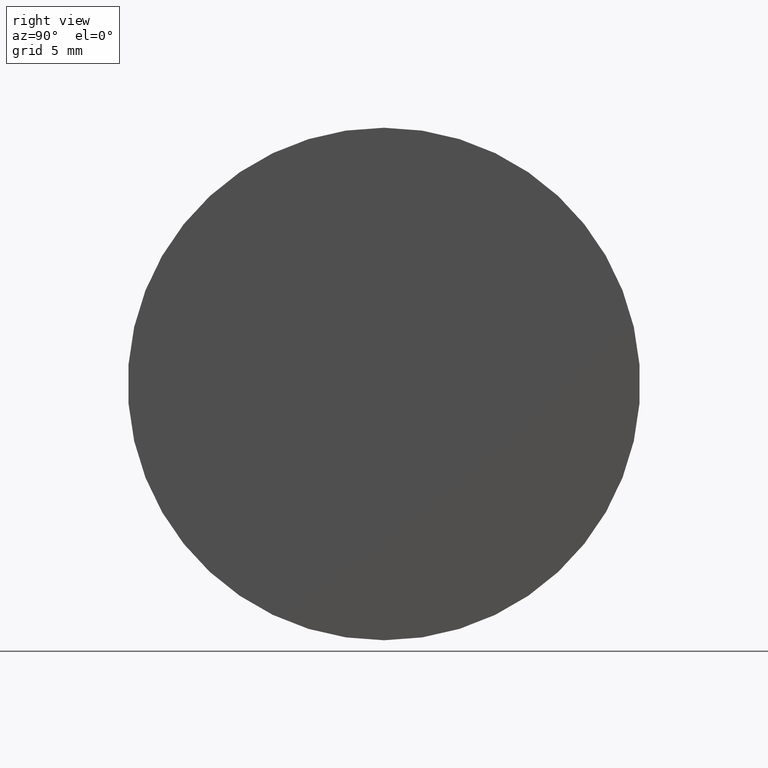
[diagram: clean part render]
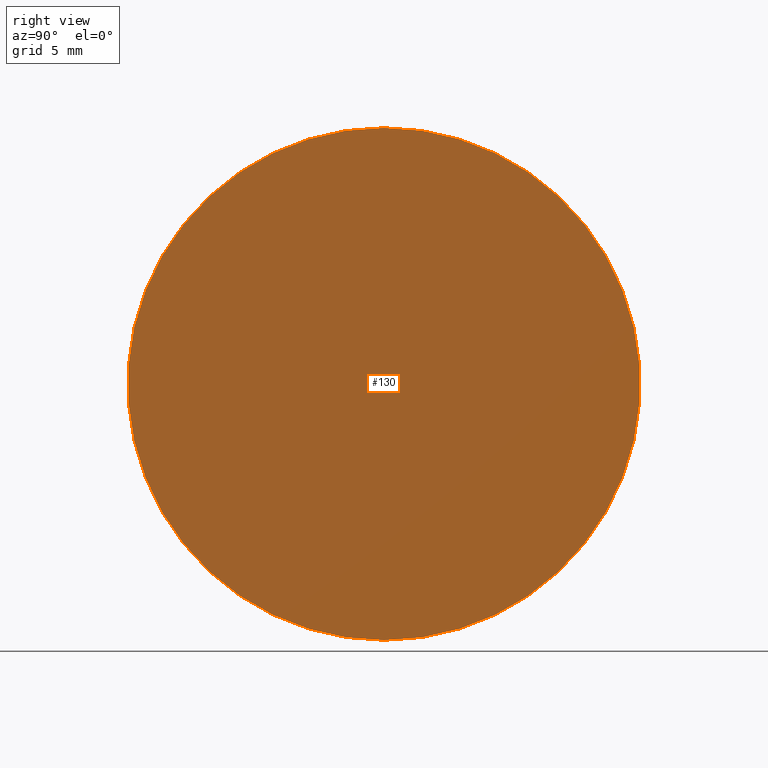
[diagram: same view with one face highlighted and labeled with its STEP entity id]
A machine part, right view. The second image highlights one B-rep face of the part: STEP entity #130.
In plain terms, the highlighted planar face has unit normal (1, 0, -0).
Its self-contained STEP definition (entity closure, byte-faithful):
#10 = DIRECTION ( 'NONE',  ( 0.000000000000000000, 0.000000000000000000, -1.000000000000000000 ) ) ;
#16 = ORIENTED_EDGE ( 'NONE', *, *, #189, .T. ) ;
#18 = EDGE_CURVE ( 'NONE', #29, #40, #191, .T. ) ;
#29 = VERTEX_POINT ( 'NONE', #115 ) ;
#38 = AXIS2_PLACEMENT_3D ( 'NONE', #168, #59, #44 ) ;
#40 = VERTEX_POINT ( 'NONE', #73 ) ;
#44 = DIRECTION ( 'NONE',  ( -0.000000000000000000, 0.000000000000000000, -1.000000000000000000 ) ) ;
#50 = DIRECTION ( 'NONE',  ( 0.000000000000000000, 0.000000000000000000, -1.000000000000000000 ) ) ;
#56 = DIRECTION ( 'NONE',  ( 1.000000000000000000, -0.000000000000000000, -0.000000000000000000 ) ) ;
#59 = DIRECTION ( 'NONE',  ( 1.000000000000000000, 0.000000000000000000, -0.000000000000000000 ) ) ;
#73 = CARTESIAN_POINT ( 'NONE',  ( -1.208496738073276077E-15, 0.000000000000000000, -15.00000000000000000 ) ) ;
#75 = ORIENTED_EDGE ( 'NONE', *, *, #18, .T. ) ;
#99 = AXIS2_PLACEMENT_3D ( 'NONE', #154, #56, #10 ) ;
#115 = CARTESIAN_POINT ( 'NONE',  ( -1.208496738073276077E-15, 1.836970198721029589E-15, 15.00000000000000000 ) ) ;
#128 = CARTESIAN_POINT ( 'NONE',  ( -1.208496738073276077E-15, 0.000000000000000000, 0.000000000000000000 ) ) ;
#130 = ADVANCED_FACE ( 'NONE', ( #153 ), #199, .T. ) ;
#143 = DIRECTION ( 'NONE',  ( 1.000000000000000000, -0.000000000000000000, -0.000000000000000000 ) ) ;
#153 = FACE_OUTER_BOUND ( 'NONE', #179, .T. ) ;
#154 = CARTESIAN_POINT ( 'NONE',  ( -1.208496738073276077E-15, 0.000000000000000000, 0.000000000000000000 ) ) ;
#161 = CIRCLE ( 'NONE', #171, 15.00000000000000000 ) ;
#168 = CARTESIAN_POINT ( 'NONE',  ( -6.042483690366380384E-16, 15.00000000000000000, 0.000000000000000000 ) ) ;
#171 = AXIS2_PLACEMENT_3D ( 'NONE', #128, #143, #50 ) ;
#179 = EDGE_LOOP ( 'NONE', ( #16, #75 ) ) ;
#189 = EDGE_CURVE ( 'NONE', #40, #29, #161, .T. ) ;
#191 = CIRCLE ( 'NONE', #99, 15.00000000000000000 ) ;
#199 = PLANE ( 'NONE',  #38 ) ;